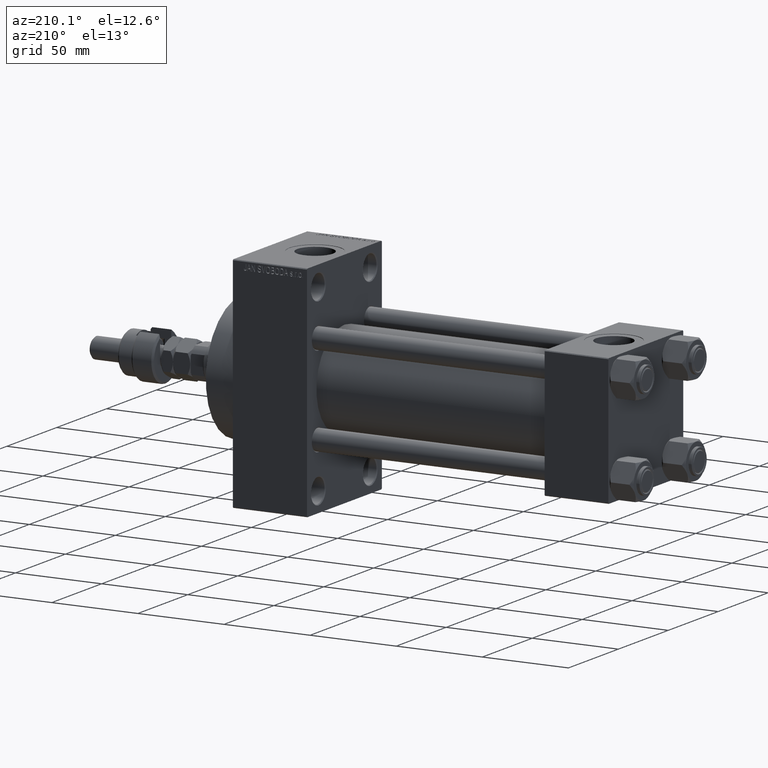
[diagram: clean part render]
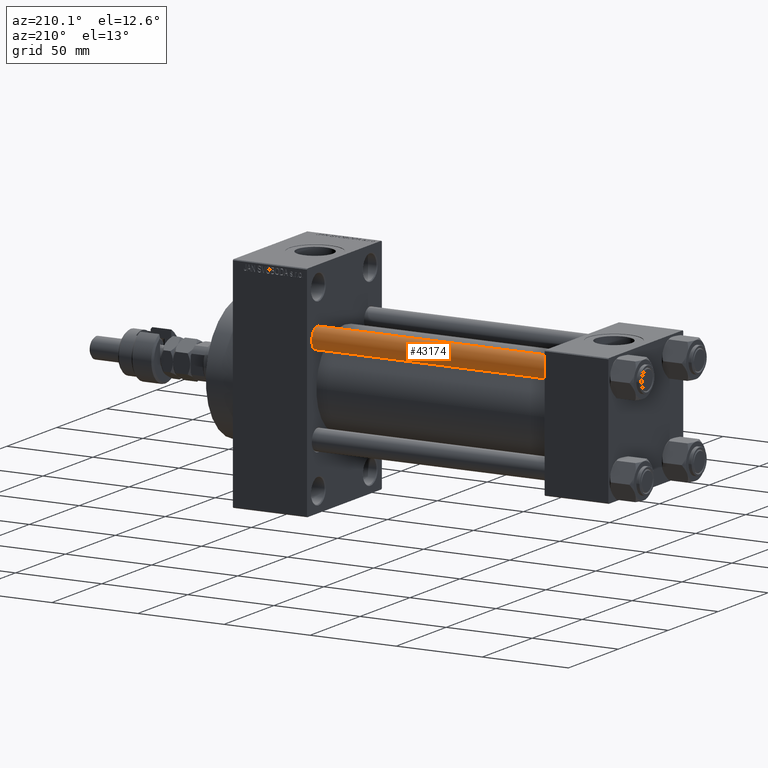
[diagram: same view with one face highlighted and labeled with its STEP entity id]
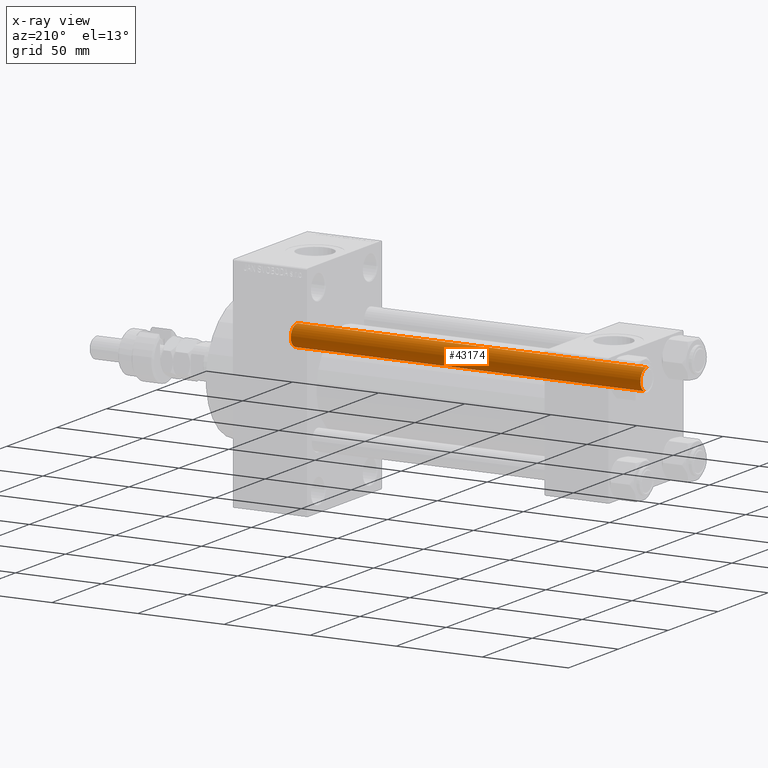
[diagram: x-ray of the same camera — body ghosted, the highlighted face saturated]
A machine part, auxiliary view. The second image highlights one B-rep face of the part: STEP entity #43174.
The next image is the same camera in x-ray: the body ghosted, the highlighted face saturated — about 0% of this face is hidden behind the body in this view.
In plain terms, the highlighted cylindrical surface (edge-blend (fillet) strip) has radius 6 mm, axis along (-1, -0, 0).
Its self-contained STEP definition (entity closure, byte-faithful):
#3927 = LINE ( 'NONE', #31633, #14680 ) ;
#5486 = ORIENTED_EDGE ( 'NONE', *, *, #16409, .T. ) ;
#5875 = CARTESIAN_POINT ( 'NONE',  ( 0.000000000000000000, 0.000000000000000000, 204.0000000000000000 ) ) ;
#8189 = CARTESIAN_POINT ( 'NONE',  ( -6.000000000000000888, 0.000000000000000000, 203.5000000000000000 ) ) ;
#9643 = CARTESIAN_POINT ( 'NONE',  ( 6.000000000000000888, 7.347880794884120722E-16, 204.0000000000000000 ) ) ;
#10202 = DIRECTION ( 'NONE',  ( 1.000000000000000000, 0.000000000000000000, 0.000000000000000000 ) ) ;
#13009 = DIRECTION ( 'NONE',  ( 0.000000000000000000, 0.000000000000000000, -1.000000000000000000 ) ) ;
#13768 = DIRECTION ( 'NONE',  ( -0.000000000000000000, -0.000000000000000000, -1.000000000000000000 ) ) ;
#14680 = VECTOR ( 'NONE', #47331, 1000.000000000000000 ) ;
#16378 = EDGE_LOOP ( 'NONE', ( #17450, #5486, #24174, #33883 ) ) ;
#16409 = EDGE_CURVE ( 'NONE', #32931, #35563, #39881, .T. ) ;
#17450 = ORIENTED_EDGE ( 'NONE', *, *, #29793, .T. ) ;
#18232 = EDGE_CURVE ( 'NONE', #35098, #45878, #3927, .T. ) ;
#18776 = CARTESIAN_POINT ( 'NONE',  ( 0.000000000000000000, 0.000000000000000000, 0.5000000000000281997 ) ) ;
#20034 = DIRECTION ( 'NONE',  ( -0.000000000000000000, -0.000000000000000000, 1.000000000000000000 ) ) ;
#21404 = DIRECTION ( 'NONE',  ( -1.000000000000000000, 0.000000000000000000, 0.000000000000000000 ) ) ;
#23249 = CARTESIAN_POINT ( 'NONE',  ( -6.000000000000000888, 0.000000000000000000, 0.5000000000000281997 ) ) ;
#24174 = ORIENTED_EDGE ( 'NONE', *, *, #42449, .T. ) ;
#24333 = CIRCLE ( 'NONE', #26767, 6.000000000000000888 ) ;
#25058 = CARTESIAN_POINT ( 'NONE',  ( 6.000000000000000888, 7.347880794884120722E-16, 203.5000000000000000 ) ) ;
#25208 = FACE_OUTER_BOUND ( 'NONE', #16378, .T. ) ;
#26005 = VECTOR ( 'NONE', #40365, 1000.000000000000000 ) ;
#26767 = AXIS2_PLACEMENT_3D ( 'NONE', #18776, #20034, #43841 ) ;
#26809 = AXIS2_PLACEMENT_3D ( 'NONE', #5875, #13768, #21404 ) ;
#29793 = EDGE_CURVE ( 'NONE', #35098, #32931, #37818, .T. ) ;
#31633 = CARTESIAN_POINT ( 'NONE',  ( -6.000000000000000888, 0.000000000000000000, 204.0000000000000000 ) ) ;
#32147 = AXIS2_PLACEMENT_3D ( 'NONE', #47784, #13009, #10202 ) ;
#32819 = CYLINDRICAL_SURFACE ( 'NONE', #26809, 6.000000000000000888 ) ;
#32931 = VERTEX_POINT ( 'NONE', #25058 ) ;
#33883 = ORIENTED_EDGE ( 'NONE', *, *, #18232, .F. ) ;
#35098 = VERTEX_POINT ( 'NONE', #8189 ) ;
#35563 = VERTEX_POINT ( 'NONE', #44844 ) ;
#37818 = CIRCLE ( 'NONE', #32147, 6.000000000000000888 ) ;
#39881 = LINE ( 'NONE', #9643, #26005 ) ;
#40365 = DIRECTION ( 'NONE',  ( -0.000000000000000000, -0.000000000000000000, -1.000000000000000000 ) ) ;
#42449 = EDGE_CURVE ( 'NONE', #35563, #45878, #24333, .T. ) ;
#43174 = ADVANCED_FACE ( 'NONE', ( #25208 ), #32819, .T. ) ;
#43841 = DIRECTION ( 'NONE',  ( 1.000000000000000000, 0.000000000000000000, 0.000000000000000000 ) ) ;
#44844 = CARTESIAN_POINT ( 'NONE',  ( 6.000000000000000888, 7.347880794884120722E-16, 0.5000000000000281997 ) ) ;
#45878 = VERTEX_POINT ( 'NONE', #23249 ) ;
#47331 = DIRECTION ( 'NONE',  ( -0.000000000000000000, -0.000000000000000000, -1.000000000000000000 ) ) ;
#47784 = CARTESIAN_POINT ( 'NONE',  ( 0.000000000000000000, 0.000000000000000000, 203.5000000000000000 ) ) ;